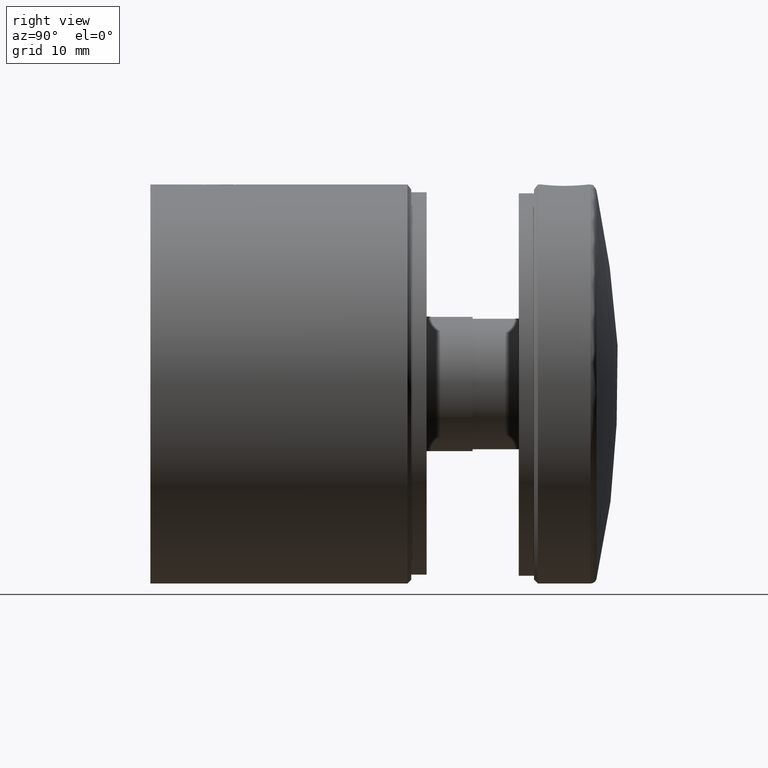
[diagram: clean part render]
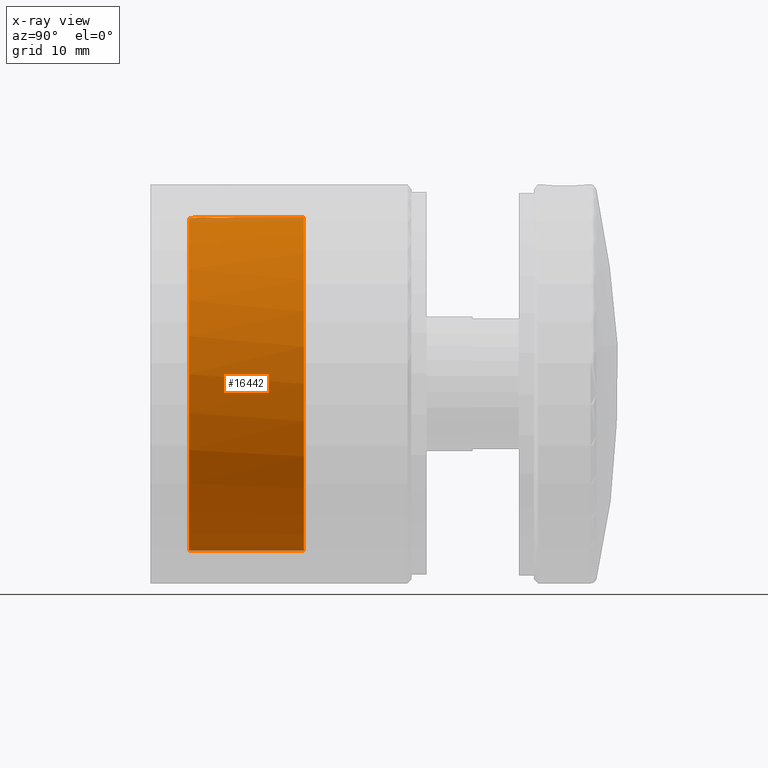
[diagram: x-ray — body ghosted, one internal face saturated and labeled with its STEP entity id]
A machine part, right view, then the same camera in x-ray: the body is ghosted and one INTERNAL B-rep face — a face not visible from any outside direction — is saturated and labeled: STEP entity #16442.
In plain terms, the highlighted cylindrical surface (bore or boss wall) has radius 21.75 mm, axis along (-0, -1, -0).
Its self-contained STEP definition (entity closure, byte-faithful):
#28 = CARTESIAN_POINT ( 'NONE',  ( -2.032339381275456000, 5.546295377389207600, 21.65485689978740400 ) ) ;
#93 = CARTESIAN_POINT ( 'NONE',  ( 1.056987721572510300, 6.835097916707577600, 21.72577265325626100 ) ) ;
#672 = CARTESIAN_POINT ( 'NONE',  ( 1.050473026080859200, 3.176453429954822800, 21.72491824244271900 ) ) ;
#741 = CARTESIAN_POINT ( 'NONE',  ( 1.278760185513218200, 3.328596978705253000, 21.71267691021284600 ) ) ;
#1546 = CARTESIAN_POINT ( 'NONE',  ( -2.100100375902282900, 4.726603415180694200, 21.64837357450517200 ) ) ;
#1604 = CARTESIAN_POINT ( 'NONE',  ( -1.679765933844916900, 3.710291927695664100, 21.68590486809005200 ) ) ;
#1675 = CARTESIAN_POINT ( 'NONE',  ( -0.2751048808428505600, 7.086427152041024700, 21.74867734979185100 ) ) ;
#2239 = EDGE_CURVE ( 'NONE', #13827, #13827, #16534, .T. ) ;
#3148 = CARTESIAN_POINT ( 'NONE',  ( 0.5516838227810461100, 7.044615457033726700, 21.74447206496893900 ) ) ;
#3215 = CARTESIAN_POINT ( 'NONE',  ( -1.887126034545843400, 5.931506658026682600, 21.66804231142419100 ) ) ;
#3284 = CARTESIAN_POINT ( 'NONE',  ( -1.386202372443735300, 6.583559987472837000, 21.70600391651685300 ) ) ;
#3771 = EDGE_LOOP ( 'NONE', ( #6804 ) ) ;
#3846 = CARTESIAN_POINT ( 'NONE',  ( 0.2734553490011446000, 2.913386764543870000, 21.74869547831716000 ) ) ;
#4208 = EDGE_LOOP ( 'NONE', ( #5803 ) ) ;
#4766 = CARTESIAN_POINT ( 'NONE',  ( -2.086159856786573600, 5.277090331791148600, 21.64973828393509000 ) ) ;
#4787 = DIRECTION ( 'NONE',  ( 0.0000000000000000000, 0.0000000000000000000, 1.000000000000000000 ) ) ;
#4834 = CARTESIAN_POINT ( 'NONE',  ( -1.281744753354302000, 3.330880715030999800, 21.71250043574855600 ) ) ;
#4899 = CARTESIAN_POINT ( 'NONE',  ( 2.099999999999997900, 5.000000000000000000, 21.64838331146231100 ) ) ;
#5280 = CARTESIAN_POINT ( 'NONE',  ( 1.677557323868993800, 3.707404910283190500, 21.68607932270053600 ) ) ;
#5310 = VERTEX_POINT ( 'NONE', #6211 ) ;
#5759 = CARTESIAN_POINT ( 'NONE',  ( 0.0000000000000000000, 1.000000000000007800, 0.0000000000000000000 ) ) ;
#5803 = ORIENTED_EDGE ( 'NONE', *, *, #2239, .T. ) ;
#6211 = CARTESIAN_POINT ( 'NONE',  ( 2.099999999999997000, 4.999999999999999100, 21.64838331146230400 ) ) ;
#6358 = CARTESIAN_POINT ( 'NONE',  ( -1.280143908479545600, 6.670311537641098600, 21.71259326215904700 ) ) ;
#6428 = CARTESIAN_POINT ( 'NONE',  ( -1.053646651611794400, 3.178281708453811300, 21.72476406128912900 ) ) ;
#6539 = CARTESIAN_POINT ( 'NONE',  ( -0.2771574582692129500, 2.913874365240851600, 21.74864840813860300 ) ) ;
#6804 = ORIENTED_EDGE ( 'NONE', *, *, #9321, .T. ) ;
#7545 = CARTESIAN_POINT ( 'NONE',  ( 0.0000000000000000000, 1.000000000000007800, -21.74999999999999300 ) ) ;
#7905 = CARTESIAN_POINT ( 'NONE',  ( 1.887133650680468300, 5.931487718486305700, 21.66804162629518500 ) ) ;
#7973 = CARTESIAN_POINT ( 'NONE',  ( 1.581590501153000000, 6.388277296665847900, 21.69263673290183900 ) ) ;
#8044 = CARTESIAN_POINT ( 'NONE',  ( -0.6790613762871075000, 3.008065564027619500, 21.73976853977434900 ) ) ;
#9189 = CARTESIAN_POINT ( 'NONE',  ( 0.0000000000000000000, 16.00000000000000000, 0.0000000000000000000 ) ) ;
#9321 = EDGE_CURVE ( 'NONE', #9354, #9354, #17501, .T. ) ;
#9354 = VERTEX_POINT ( 'NONE', #15925 ) ;
#9537 = CARTESIAN_POINT ( 'NONE',  ( 1.291146894646880300, 6.678662908253071100, 21.71251039038009300 ) ) ;
#9610 = CARTESIAN_POINT ( 'NONE',  ( -1.992577234739893600, 5.677189255529857100, 21.65859963717704800 ) ) ;
#9674 = CARTESIAN_POINT ( 'NONE',  ( 2.086370067569942600, 5.275309351184041000, 21.64971775799330400 ) ) ;
#10397 = CARTESIAN_POINT ( 'NONE',  ( 1.834164769193666700, 3.941393453948776500, 21.67278129674618700 ) ) ;
#11147 = CARTESIAN_POINT ( 'NONE',  ( -1.669212042416141000, 6.281574583616015100, 21.68598748840585700 ) ) ;
#11169 = ORIENTED_EDGE ( 'NONE', *, *, #13055, .T. ) ;
#11216 = CARTESIAN_POINT ( 'NONE',  ( -1.836010062360262000, 3.944583851818265000, 21.67262297679972200 ) ) ;
#11286 = CARTESIAN_POINT ( 'NONE',  ( -0.1358955096395765300, 7.100074436126981000, 21.75000718693534900 ) ) ;
#11715 = AXIS2_PLACEMENT_3D ( 'NONE', #5759, #15259, #16934 ) ;
#12369 = CARTESIAN_POINT ( 'NONE',  ( -0.5456151976140605200, 2.967503880248212300, 21.74356980566062700 ) ) ;
#12419 = DIRECTION ( 'NONE',  ( 0.0000000000000000000, 1.000000000000000000, 0.0000000000000000000 ) ) ;
#12558 = AXIS2_PLACEMENT_3D ( 'NONE', #17867, #19489, #16190 ) ;
#12757 = CARTESIAN_POINT ( 'NONE',  ( 2.099999999999997900, 5.138822714302124300, 21.64838331146231500 ) ) ;
#12827 = CARTESIAN_POINT ( 'NONE',  ( 0.2752273321514816500, 7.099850190583571100, 21.74998553564468300 ) ) ;
#12893 = CARTESIAN_POINT ( 'NONE',  ( -0.9297821351355787200, 6.887973652164142800, 21.73049010117087200 ) ) ;
#13055 = EDGE_CURVE ( 'NONE', #5310, #5310, #16068, .T. ) ;
#13112 = CARTESIAN_POINT ( 'NONE',  ( -0.1407287122436174900, 2.900133673387701400, 21.74998709360977100 ) ) ;
#13634 = EDGE_LOOP ( 'NONE', ( #11169 ) ) ;
#13827 = VERTEX_POINT ( 'NONE', #7545 ) ;
#14332 = CARTESIAN_POINT ( 'NONE',  ( -0.6754374641637941300, 6.993169225652276400, 21.73988222341387200 ) ) ;
#14392 = CARTESIAN_POINT ( 'NONE',  ( -1.389648632982440700, 3.419614982696230300, 21.70577740054336100 ) ) ;
#14460 = CARTESIAN_POINT ( 'NONE',  ( -1.582345586245643000, 6.387588446544056000, 21.69258733961678900 ) ) ;
#14843 = CARTESIAN_POINT ( 'NONE',  ( 2.044128855569776500, 4.446515183839025600, 21.65398685598034200 ) ) ;
#14917 = CARTESIAN_POINT ( 'NONE',  ( 1.386853782480603100, 3.417158647802673900, 21.70595702399113900 ) ) ;
#15259 = DIRECTION ( 'NONE',  ( -0.0000000000000000000, -1.000000000000000000, -0.0000000000000000000 ) ) ;
#15358 = FACE_OUTER_BOUND ( 'NONE', #3771, .T. ) ;
#15925 = CARTESIAN_POINT ( 'NONE',  ( 0.0000000000000000000, 16.00000000000000000, 21.74999999999999300 ) ) ;
#15958 = AXIS2_PLACEMENT_3D ( 'NONE', #9189, #12419, #4787 ) ;
#16003 = CARTESIAN_POINT ( 'NONE',  ( 1.670236837092357300, 6.280287041462206500, 21.68590907092830000 ) ) ;
#16068 = B_SPLINE_CURVE_WITH_KNOTS ( 'NONE', 3,
 ( #4899, #12757, #9674, #16070, #20677, #7905, #17553, #16003, #7973, #9537, #93, #3148, #12827, #11286, #1675, #19160, #14332, #12893, #19097, #6358, #3284, #14460, #11147, #17682, #3215, #9610, #28, #4766, #19228, #1546, #19300, #11216, #1604, #14392, #4834, #6428, #17616, #8044, #12369, #6539, #13112, #20277, #3846, #20569, #19892, #20080, #672, #741, #14917, #5280, #10397, #14843, #19877, #16729 ),
 .UNSPECIFIED., .T., .F.,
 ( 4, 2, 2, 2, 2, 2, 2, 2, 2, 2, 2, 2, 2, 2, 2, 2, 2, 2, 2, 2, 2, 2, 2, 2, 2, 2, 4 ),
 ( 0.0000000000000000000, 0.0004105382346277378200, 0.0008210764692554756300, 0.001231614703883213500, 0.001642152938510951300, 0.002463229407766429100, 0.003284305877021907300, 0.003694844111649645800, 0.004105382346277384700, 0.004515920580905123100, 0.004926458815532860700, 0.005336997050160600100, 0.005747535284788338500, 0.006158073519416077000, 0.006568611754043815500, 0.007389688223299295900, 0.008210764692554776300, 0.008621302927182517400, 0.009031841161810258400, 0.009442379396437999500, 0.009852917631065738800, 0.01026345586569347800, 0.01067399410032121900, 0.01108453233494896000, 0.01149507056957670100, 0.01231614703883218200, 0.01313722350808766000 ),
 .UNSPECIFIED. ) ;
#16070 = CARTESIAN_POINT ( 'NONE',  ( 2.032980505208917600, 5.543806549373645300, 21.65479645078803700 ) ) ;
#16190 = DIRECTION ( 'NONE',  ( 0.0000000000000000000, 0.0000000000000000000, -1.000000000000000000 ) ) ;
#16356 = FACE_OUTER_BOUND ( 'NONE', #4208, .T. ) ;
#16442 = ADVANCED_FACE ( 'NONE', ( #20624, #16356, #15358 ), #19138, .F. ) ;
#16534 = CIRCLE ( 'NONE', #11715, 21.74999999999999300 ) ;
#16729 = CARTESIAN_POINT ( 'NONE',  ( 2.099999999999997900, 5.000000000000000000, 21.64838331146231100 ) ) ;
#16934 = DIRECTION ( 'NONE',  ( 0.0000000000000000000, 0.0000000000000000000, -1.000000000000000000 ) ) ;
#17501 = CIRCLE ( 'NONE', #15958, 21.74999999999999300 ) ;
#17553 = CARTESIAN_POINT ( 'NONE',  ( 1.822626473158281100, 6.052073542989715400, 21.67363319944057300 ) ) ;
#17616 = CARTESIAN_POINT ( 'NONE',  ( -0.9331347341929171500, 3.113684353608795700, 21.73034560432875000 ) ) ;
#17682 = CARTESIAN_POINT ( 'NONE',  ( -1.821326496742648100, 6.054263746972632800, 21.67374199306859900 ) ) ;
#17867 = CARTESIAN_POINT ( 'NONE',  ( 0.0000000000000000000, 0.0000000000000000000, 0.0000000000000000000 ) ) ;
#19097 = CARTESIAN_POINT ( 'NONE',  ( -1.052659575912668000, 6.822255985429496400, 21.72481029633196700 ) ) ;
#19138 = CYLINDRICAL_SURFACE ( 'NONE', #12558, 21.74999999999999300 ) ;
#19160 = CARTESIAN_POINT ( 'NONE',  ( -0.5444946943955960600, 7.032827214500198200, 21.74360077559804000 ) ) ;
#19228 = CARTESIAN_POINT ( 'NONE',  ( -2.099949600343860500, 5.137853169639274900, 21.64838820047730600 ) ) ;
#19300 = CARTESIAN_POINT ( 'NONE',  ( -2.045121727676634900, 4.450169740814643200, 21.65389103054183600 ) ) ;
#19489 = DIRECTION ( 'NONE',  ( -0.0000000000000000000, -1.000000000000000000, -0.0000000000000000000 ) ) ;
#19877 = CARTESIAN_POINT ( 'NONE',  ( 2.099999999999997400, 4.722354571395747800, 21.64838331146230400 ) ) ;
#19892 = CARTESIAN_POINT ( 'NONE',  ( 0.6753324225987497000, 3.006789827440975700, 21.73988591156846100 ) ) ;
#20080 = CARTESIAN_POINT ( 'NONE',  ( 0.9298221290303783100, 3.112040392018067700, 21.73048881496666600 ) ) ;
#20277 = CARTESIAN_POINT ( 'NONE',  ( 0.1367105962720693800, 2.899868248667024900, 21.75001272081256300 ) ) ;
#20569 = CARTESIAN_POINT ( 'NONE',  ( 0.5419809510207157500, 2.966532697334742800, 21.74366090347256600 ) ) ;
#20624 = FACE_BOUND ( 'NONE', #13634, .T. ) ;
#20677 = CARTESIAN_POINT ( 'NONE',  ( 1.992567059393881600, 5.677214367124503400, 21.65860055147169300 ) ) ;